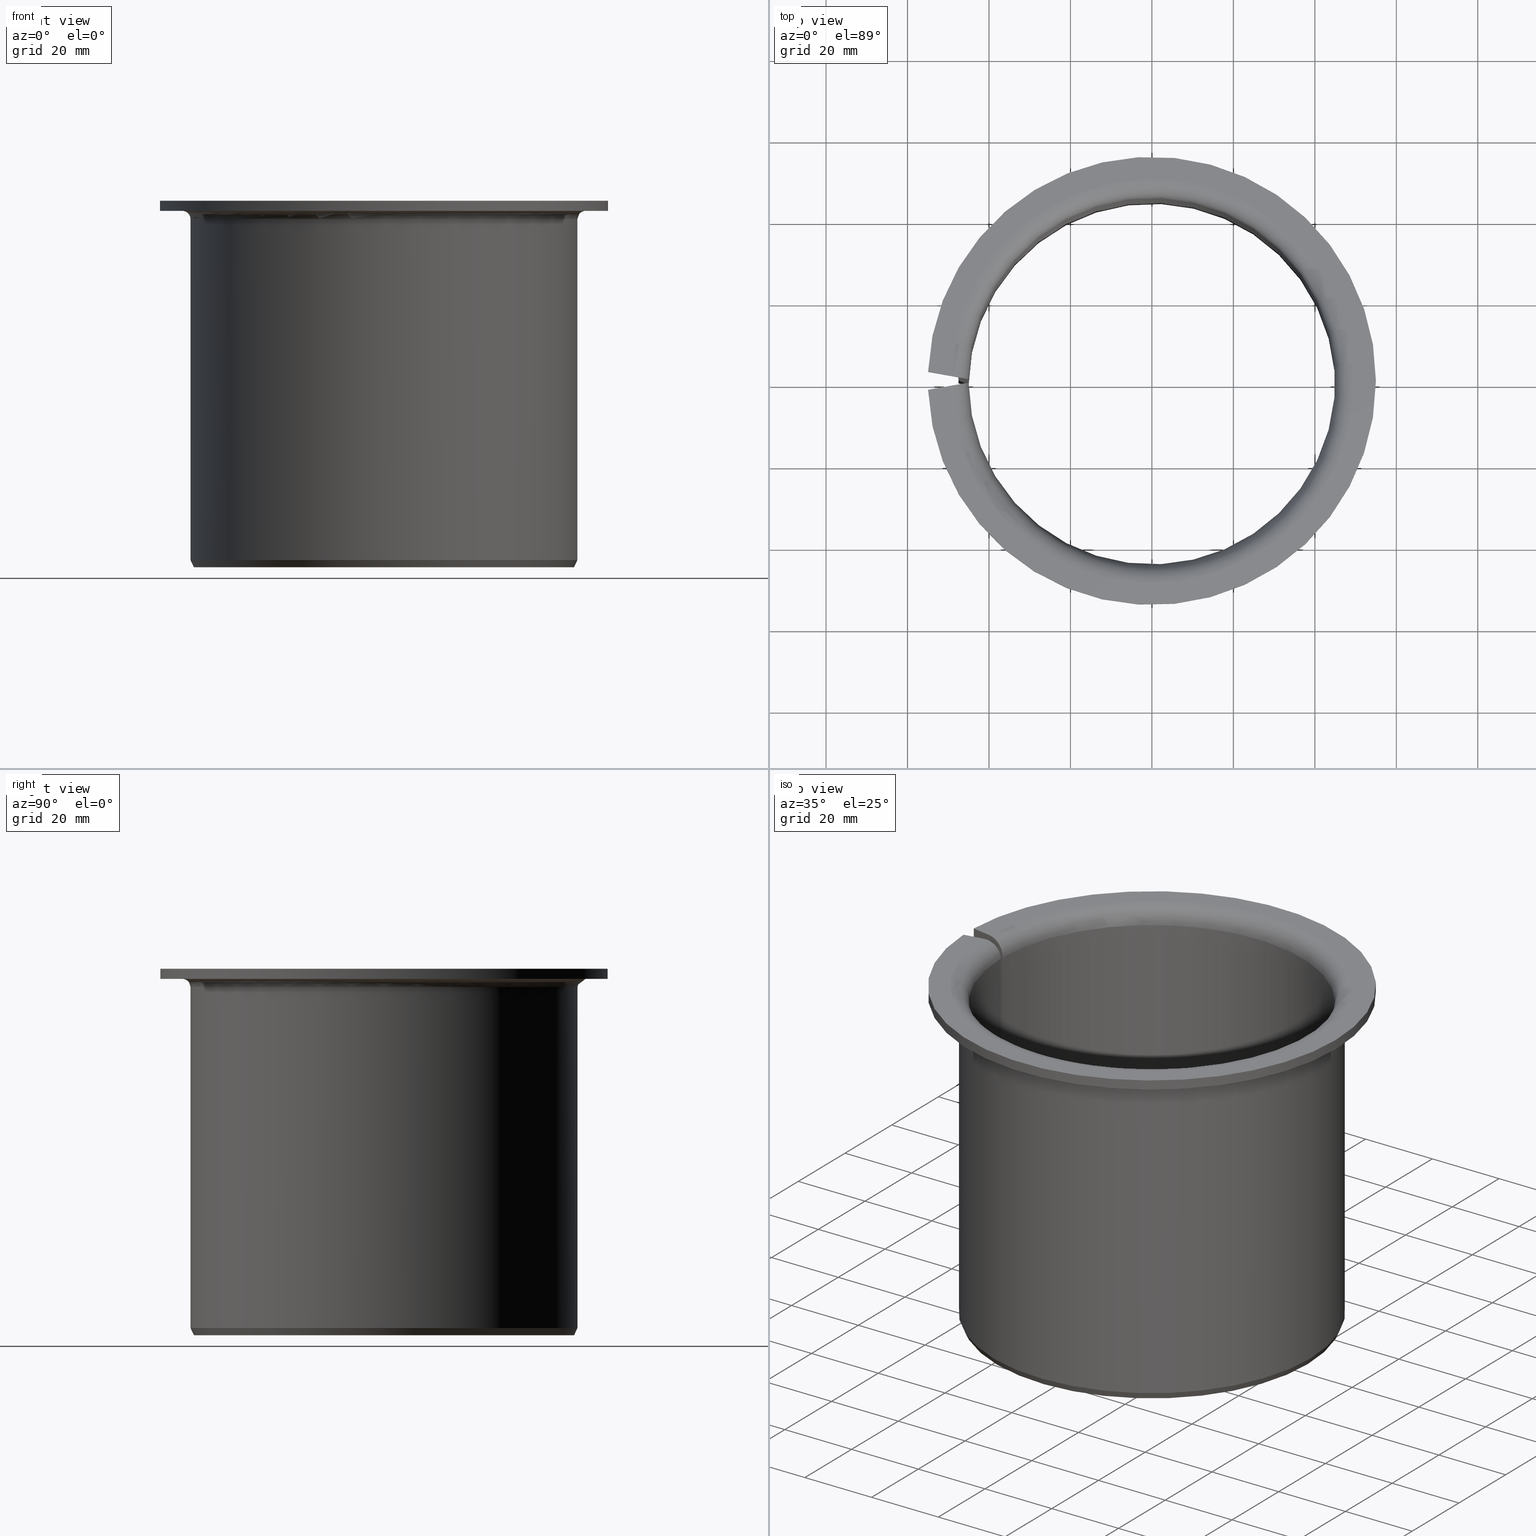
[diagram: canonical four-view strip — front | top / right | iso, engineering-drawing reading convention]
A machine part, canonical four-view strip (front | top / right | iso — engineering-drawing reading convention). The complete STEP part file that produces these views, byte-faithful:
ISO-10303-21;
HEADER;
FILE_DESCRIPTION(('STEP AP203'),'1');
FILE_NAME('475-FBB090-9090.stp','2016-09-21T15:05:08',(' '),(' '),'Spatial InterOp 3D',' ',' ');
FILE_SCHEMA(('CONFIG_CONTROL_DESIGN'));
ENDSEC;
DATA;
#1=DESIGN_CONTEXT('',#51,'design');
#2=APPLICATION_PROTOCOL_DEFINITION('INTERNATIONAL STANDARD','config_control_design',1994,#51);
#3=PRODUCT_CATEGORY_RELATIONSHIP('NONE','NONE',#52,#53);
#4=DATE_AND_TIME(#54,#55);
#5=DATE_TIME_ROLE('creation_date');
#6=DATE_TIME_ROLE('classification_date');
#7=PERSON_AND_ORGANIZATION_ROLE('creator');
#8=PERSON_AND_ORGANIZATION_ROLE('design_supplier');
#9=PERSON_AND_ORGANIZATION_ROLE('classification_officer');
#10=PERSON_AND_ORGANIZATION_ROLE('design_owner');
#11=APPROVAL_PERSON_ORGANIZATION(#56,#57,#58);
#12=APPROVAL_DATE_TIME(#4,#57);
#13=CC_DESIGN_APPROVAL(#57,(#59,#60,#61));
#14=CC_DESIGN_DATE_AND_TIME_ASSIGNMENT(#4,#5,(#61));
#15=CC_DESIGN_DATE_AND_TIME_ASSIGNMENT(#4,#6,(#59));
#16=CC_DESIGN_PERSON_AND_ORGANIZATION_ASSIGNMENT(#56,#10,(#62));
#17=CC_DESIGN_PERSON_AND_ORGANIZATION_ASSIGNMENT(#56,#7,(#61));
#18=CC_DESIGN_PERSON_AND_ORGANIZATION_ASSIGNMENT(#56,#7,(#60));
#19=CC_DESIGN_PERSON_AND_ORGANIZATION_ASSIGNMENT(#56,#8,(#60));
#20=CC_DESIGN_SECURITY_CLASSIFICATION(#59,(#60));
#21=CC_DESIGN_PERSON_AND_ORGANIZATION_ASSIGNMENT(#56,#9,(#59));
#22=SHAPE_DEFINITION_REPRESENTATION(#63,#64);
#23=DESIGN_CONTEXT('',#65,'design');
#24=APPLICATION_PROTOCOL_DEFINITION('INTERNATIONAL STANDARD','config_control_design',1994,#65);
#25=PRODUCT_CATEGORY_RELATIONSHIP('NONE','NONE',#66,#67);
#26=DATE_AND_TIME(#68,#69);
#27=DATE_TIME_ROLE('creation_date');
#28=DATE_TIME_ROLE('classification_date');
#29=PERSON_AND_ORGANIZATION_ROLE('creator');
#30=PERSON_AND_ORGANIZATION_ROLE('design_supplier');
#31=PERSON_AND_ORGANIZATION_ROLE('classification_officer');
#32=PERSON_AND_ORGANIZATION_ROLE('design_owner');
#33=APPROVAL_PERSON_ORGANIZATION(#70,#71,#72);
#34=APPROVAL_DATE_TIME(#26,#71);
#35=CC_DESIGN_APPROVAL(#71,(#73,#74,#75));
#36=CC_DESIGN_DATE_AND_TIME_ASSIGNMENT(#26,#27,(#75));
#37=CC_DESIGN_DATE_AND_TIME_ASSIGNMENT(#26,#28,(#73));
#38=CC_DESIGN_PERSON_AND_ORGANIZATION_ASSIGNMENT(#70,#32,(#76));
#39=CC_DESIGN_PERSON_AND_ORGANIZATION_ASSIGNMENT(#70,#29,(#75));
#40=CC_DESIGN_PERSON_AND_ORGANIZATION_ASSIGNMENT(#70,#29,(#74));
#41=CC_DESIGN_PERSON_AND_ORGANIZATION_ASSIGNMENT(#70,#30,(#74));
#42=CC_DESIGN_SECURITY_CLASSIFICATION(#73,(#74));
#43=CC_DESIGN_PERSON_AND_ORGANIZATION_ASSIGNMENT(#70,#31,(#73));
#44=CONTEXT_DEPENDENT_SHAPE_REPRESENTATION(#77,#78);
#45=SHAPE_DEFINITION_REPRESENTATION(#79,#80);
#46=SHAPE_REPRESENTATION_RELATIONSHIP('NONE','NONE',#80,#81);
#47= (GEOMETRIC_REPRESENTATION_CONTEXT(3)GLOBAL_UNCERTAINTY_ASSIGNED_CONTEXT((#84))GLOBAL_UNIT_ASSIGNED_CONTEXT((#86,#87,#88))REPRESENTATION_CONTEXT('NONE','WORKSPACE'));
#51=APPLICATION_CONTEXT('CONFIGURATION CONTROLLED 3D DESIGNS OF MECHANICAL PARTS AND ASSEMBLIES');
#52=PRODUCT_CATEGORY('part','NONE');
#53=PRODUCT_RELATED_PRODUCT_CATEGORY('detail',' ',(#62));
#54=CALENDAR_DATE(2016,21,8);
#55=LOCAL_TIME(17,5,8.0,#90);
#56=PERSON_AND_ORGANIZATION(#91,#92);
#57=APPROVAL(#93,'SOLID MODEL');
#58=APPROVAL_ROLE('APPROVED');
#59=SECURITY_CLASSIFICATION('','',#94);
#60=PRODUCT_DEFINITION_FORMATION_WITH_SPECIFIED_SOURCE(' ','NONE',#62,.NOT_KNOWN.);
#61=PRODUCT_DEFINITION('NONE','NONE',#60,#1);
#62=PRODUCT('','','PART--DESC',(#95));
#63=PRODUCT_DEFINITION_SHAPE('NONE','NONE',#61);
#64=SHAPE_REPRESENTATION('',(#96,#97),#98);
#65=APPLICATION_CONTEXT('CONFIGURATION CONTROLLED 3D DESIGNS OF MECHANICAL PARTS AND ASSEMBLIES');
#66=PRODUCT_CATEGORY('part','NONE');
#67=PRODUCT_RELATED_PRODUCT_CATEGORY('detail',' ',(#76));
#68=CALENDAR_DATE(2016,21,8);
#69=LOCAL_TIME(17,5,8.0,#99);
#70=PERSON_AND_ORGANIZATION(#100,#101);
#71=APPROVAL(#102,'SOLID MODEL');
#72=APPROVAL_ROLE('APPROVED');
#73=SECURITY_CLASSIFICATION('','',#103);
#74=PRODUCT_DEFINITION_FORMATION_WITH_SPECIFIED_SOURCE(' ','NONE',#76,.NOT_KNOWN.);
#75=PRODUCT_DEFINITION('475-FBB090-9090','475-FBB090-9090',#74,#23);
#76=PRODUCT('475-FBB090-9090','475-FBB090-9090','PART-475-FBB090-9090-DESC',(#104));
#77=(REPRESENTATION_RELATIONSHIP('','',#80,#64)REPRESENTATION_RELATIONSHIP_WITH_TRANSFORMATION(#107)SHAPE_REPRESENTATION_RELATIONSHIP());
#78=PRODUCT_DEFINITION_SHAPE('NAUO-PROD-DEF','NAUO-PROD-DEF',#109);
#79=PRODUCT_DEFINITION_SHAPE('NONE','NONE',#75);
#80=SHAPE_REPRESENTATION('475-FBB090-9090',(#96),#98);
#81=ADVANCED_BREP_SHAPE_REPRESENTATION('',(#110),#47);
#84=UNCERTAINTY_MEASURE_WITH_UNIT(LENGTH_MEASURE(1.0E-006),#86,'','');
#86= (CONVERSION_BASED_UNIT('METRE',#113)LENGTH_UNIT()NAMED_UNIT(#116));
#87= (NAMED_UNIT(#118)PLANE_ANGLE_UNIT()SI_UNIT($,.RADIAN.));
#88= (NAMED_UNIT(#118)SOLID_ANGLE_UNIT()SI_UNIT($,.STERADIAN.));
#90=COORDINATED_UNIVERSAL_TIME_OFFSET(1,0,.AHEAD.);
#91=PERSON('','UNSPECIFIED',$,$,$,$);
#92=ORGANIZATION('UNSPECIFIED','UNSPECIFIED','UNSPECIFIED');
#93=APPROVAL_STATUS('approved');
#94=SECURITY_CLASSIFICATION_LEVEL('unclassified');
#95=MECHANICAL_CONTEXT('',#51,'mechanical');
#96=AXIS2_PLACEMENT_3D('',#124,#125,#126);
#97=AXIS2_PLACEMENT_3D('',#127,#128,#129);
#98= (GEOMETRIC_REPRESENTATION_CONTEXT(3)GLOBAL_UNCERTAINTY_ASSIGNED_CONTEXT((#132))GLOBAL_UNIT_ASSIGNED_CONTEXT((#134,#135,#136))REPRESENTATION_CONTEXT('NONE','WORKSPACE'));
#99=COORDINATED_UNIVERSAL_TIME_OFFSET(1,0,.AHEAD.);
#100=PERSON('','UNSPECIFIED',$,$,$,$);
#101=ORGANIZATION('UNSPECIFIED','UNSPECIFIED','UNSPECIFIED');
#102=APPROVAL_STATUS('approved');
#103=SECURITY_CLASSIFICATION_LEVEL('unclassified');
#104=MECHANICAL_CONTEXT('',#65,'mechanical');
#107=ITEM_DEFINED_TRANSFORMATION('','',#96,#97);
#109=NEXT_ASSEMBLY_USAGE_OCCURRENCE('475-FBB090-9090','475-FBB090-9090','475-FBB090-9090',#61,#75,$);
#110=MANIFOLD_SOLID_BREP('',#138);
#113=LENGTH_MEASURE_WITH_UNIT(LENGTH_MEASURE(1.0),#139);
#116=DIMENSIONAL_EXPONENTS(1.0,0.0,0.0,0.0,0.0,0.0,0.0);
#118=DIMENSIONAL_EXPONENTS(0.0,0.0,0.0,0.0,0.0,0.0,0.0);
#124=CARTESIAN_POINT('',(0.0,0.0,0.0));
#125=DIRECTION('',(0.0,0.0,1.0));
#126=DIRECTION('',(1.0,0.0,0.0));
#127=CARTESIAN_POINT('',(0.0,0.0,0.0));
#128=DIRECTION('',(0.0,0.0,1.0));
#129=DIRECTION('',(-1.0,-1.20980294963545E-015,0.0));
#132=UNCERTAINTY_MEASURE_WITH_UNIT(LENGTH_MEASURE(1.0E-006),#134,'','');
#134= (CONVERSION_BASED_UNIT('METRE',#142)LENGTH_UNIT()NAMED_UNIT(#145));
#135= (NAMED_UNIT(#147)PLANE_ANGLE_UNIT()SI_UNIT($,.RADIAN.));
#136= (NAMED_UNIT(#147)SOLID_ANGLE_UNIT()SI_UNIT($,.STERADIAN.));
#138=CLOSED_SHELL('',(#153,#154,#155,#156,#157,#158,#159,#160,#161,#162,#163,#164));
#139= (NAMED_UNIT(#116)LENGTH_UNIT()SI_UNIT($,.METRE.));
#142=LENGTH_MEASURE_WITH_UNIT(LENGTH_MEASURE(1.0),#166);
#145=DIMENSIONAL_EXPONENTS(1.0,0.0,0.0,0.0,0.0,0.0,0.0);
#147=DIMENSIONAL_EXPONENTS(0.0,0.0,0.0,0.0,0.0,0.0,0.0);
#153=ADVANCED_FACE('',(#167),#168,.F.);
#154=ADVANCED_FACE('',(#169),#170,.F.);
#155=ADVANCED_FACE('',(#171),#172,.T.);
#156=ADVANCED_FACE('',(#173),#174,.F.);
#157=ADVANCED_FACE('',(#175),#176,.T.);
#158=ADVANCED_FACE('',(#177),#178,.T.);
#159=ADVANCED_FACE('',(#179),#180,.T.);
#160=ADVANCED_FACE('',(#181),#182,.T.);
#161=ADVANCED_FACE('',(#183),#184,.F.);
#162=ADVANCED_FACE('',(#185),#186,.T.);
#163=ADVANCED_FACE('',(#187),#188,.T.);
#164=ADVANCED_FACE('',(#189),#190,.T.);
#166= (NAMED_UNIT(#145)LENGTH_UNIT()SI_UNIT($,.METRE.));
#167=FACE_OUTER_BOUND('',#192,.T.);
#168=PLANE('',#193);
#169=FACE_OUTER_BOUND('',#194,.T.);
#170=CONICAL_SURFACE('',#195,0.045,0.785398163397448);
#171=FACE_OUTER_BOUND('',#196,.T.);
#172=TOROIDAL_SURFACE('',#197,0.0495,0.0045);
#173=FACE_OUTER_BOUND('',#198,.T.);
#174=TOROIDAL_SURFACE('',#199,0.0495,0.002);
#175=FACE_OUTER_BOUND('',#200,.T.);
#176=PLANE('',#201);
#177=FACE_OUTER_BOUND('',#202,.T.);
#178=CYLINDRICAL_SURFACE('',#203,0.055);
#179=FACE_OUTER_BOUND('',#204,.T.);
#180=PLANE('',#205);
#181=FACE_OUTER_BOUND('',#206,.T.);
#182=CYLINDRICAL_SURFACE('',#207,0.0475);
#183=FACE_OUTER_BOUND('',#208,.T.);
#184=CYLINDRICAL_SURFACE('',#209,0.045);
#185=FACE_OUTER_BOUND('',#210,.T.);
#186=PLANE('',#211);
#187=FACE_OUTER_BOUND('',#212,.T.);
#188=CONICAL_SURFACE('',#213,0.046660646215321,0.436332312998585);
#189=FACE_OUTER_BOUND('',#214,.T.);
#190=PLANE('',#215);
#192=EDGE_LOOP('',(#216,#217,#218,#219,#220,#221,#222,#223,#224,#225));
#193=AXIS2_PLACEMENT_3D('',#226,#227,#228);
#194=EDGE_LOOP('',(#229,#230,#231,#232));
#195=AXIS2_PLACEMENT_3D('',#233,#234,#235);
#196=EDGE_LOOP('',(#236,#237,#238,#239));
#197=AXIS2_PLACEMENT_3D('',#240,#241,#242);
#198=EDGE_LOOP('',(#243,#244,#245,#246));
#199=AXIS2_PLACEMENT_3D('',#247,#248,#249);
#200=EDGE_LOOP('',(#250,#251,#252,#253));
#201=AXIS2_PLACEMENT_3D('',#254,#255,#256);
#202=EDGE_LOOP('',(#257,#258,#259,#260));
#203=AXIS2_PLACEMENT_3D('',#261,#262,#263);
#204=EDGE_LOOP('',(#264,#265,#266,#267));
#205=AXIS2_PLACEMENT_3D('',#268,#269,#270);
#206=EDGE_LOOP('',(#271,#272,#273,#274));
#207=AXIS2_PLACEMENT_3D('',#275,#276,#277);
#208=EDGE_LOOP('',(#278,#279,#280,#281));
#209=AXIS2_PLACEMENT_3D('',#282,#283,#284);
#210=EDGE_LOOP('',(#285,#286,#287,#288));
#211=AXIS2_PLACEMENT_3D('',#289,#290,#291);
#212=EDGE_LOOP('',(#292,#293,#294,#295));
#213=AXIS2_PLACEMENT_3D('',#296,#297,#298);
#214=EDGE_LOOP('',(#299,#300,#301,#302,#303,#304,#305,#306,#307,#308));
#215=AXIS2_PLACEMENT_3D('',#309,#310,#311);
#216=ORIENTED_EDGE('',*,*,#312,.T.);
#217=ORIENTED_EDGE('',*,*,#313,.F.);
#218=ORIENTED_EDGE('',*,*,#314,.T.);
#219=ORIENTED_EDGE('',*,*,#315,.T.);
#220=ORIENTED_EDGE('',*,*,#316,.T.);
#221=ORIENTED_EDGE('',*,*,#317,.T.);
#222=ORIENTED_EDGE('',*,*,#318,.T.);
#223=ORIENTED_EDGE('',*,*,#319,.F.);
#224=ORIENTED_EDGE('',*,*,#320,.T.);
#225=ORIENTED_EDGE('',*,*,#321,.T.);
#226=CARTESIAN_POINT('',(0.0317904414431837,0.00188838412504393,-6.28824004449366E-019));
#227=DIRECTION('',(-0.173648177666931,-0.984807753012208,5.78241158658935E-017));
#228=DIRECTION('',(-1.00410523453138E-017,-5.69456376158081E-017,-1.0));
#229=ORIENTED_EDGE('',*,*,#322,.T.);
#230=ORIENTED_EDGE('',*,*,#323,.T.);
#231=ORIENTED_EDGE('',*,*,#324,.F.);
#232=ORIENTED_EDGE('',*,*,#320,.F.);
#233=CARTESIAN_POINT('',(0.0,0.0,0.0006));
#234=DIRECTION('',(0.0,-6.12323399573677E-017,-1.0));
#235=DIRECTION('',(0.0,1.0,-6.12323399573677E-017));
#236=ORIENTED_EDGE('',*,*,#325,.T.);
#237=ORIENTED_EDGE('',*,*,#326,.T.);
#238=ORIENTED_EDGE('',*,*,#327,.F.);
#239=ORIENTED_EDGE('',*,*,#312,.F.);
#240=CARTESIAN_POINT('',(0.0,6.93889390390723E-018,0.0855));
#241=DIRECTION('',(0.0,-6.12323399573677E-017,-1.0));
#242=DIRECTION('',(0.0,1.0,-6.12323399573677E-017));
#243=ORIENTED_EDGE('',*,*,#328,.T.);
#244=ORIENTED_EDGE('',*,*,#329,.T.);
#245=ORIENTED_EDGE('',*,*,#330,.F.);
#246=ORIENTED_EDGE('',*,*,#316,.F.);
#247=CARTESIAN_POINT('',(0.0,6.93889390390723E-018,0.0855));
#248=DIRECTION('',(0.0,-6.12323399573677E-017,-1.0));
#249=DIRECTION('',(0.0,1.0,-6.12323399573677E-017));
#250=ORIENTED_EDGE('',*,*,#331,.T.);
#251=ORIENTED_EDGE('',*,*,#332,.T.);
#252=ORIENTED_EDGE('',*,*,#328,.F.);
#253=ORIENTED_EDGE('',*,*,#315,.F.);
#254=CARTESIAN_POINT('',(0.0495,6.93889390390723E-018,0.0875));
#255=DIRECTION('',(0.0,-6.12323399573677E-017,-1.0));
#256=DIRECTION('',(0.0,1.0,-6.12323399573677E-017));
#257=ORIENTED_EDGE('',*,*,#333,.T.);
#258=ORIENTED_EDGE('',*,*,#334,.T.);
#259=ORIENTED_EDGE('',*,*,#331,.F.);
#260=ORIENTED_EDGE('',*,*,#314,.F.);
#261=CARTESIAN_POINT('',(0.0,0.0,0.0));
#262=DIRECTION('',(0.0,-6.12323399573677E-017,-1.0));
#263=DIRECTION('',(0.0,1.0,-6.12323399573677E-017));
#264=ORIENTED_EDGE('',*,*,#327,.T.);
#265=ORIENTED_EDGE('',*,*,#335,.F.);
#266=ORIENTED_EDGE('',*,*,#333,.F.);
#267=ORIENTED_EDGE('',*,*,#313,.T.);
#268=CARTESIAN_POINT('',(0.055,6.93889390390723E-018,0.09));
#269=DIRECTION('',(0.0,6.12323399573677E-017,1.0));
#270=DIRECTION('',(0.0,-1.0,6.12323399573677E-017));
#271=ORIENTED_EDGE('',*,*,#330,.T.);
#272=ORIENTED_EDGE('',*,*,#336,.T.);
#273=ORIENTED_EDGE('',*,*,#337,.F.);
#274=ORIENTED_EDGE('',*,*,#317,.F.);
#275=CARTESIAN_POINT('',(0.0,0.0,0.0));
#276=DIRECTION('',(0.0,-6.12323399573677E-017,-1.0));
#277=DIRECTION('',(0.0,1.0,-6.12323399573677E-017));
#278=ORIENTED_EDGE('',*,*,#324,.T.);
#279=ORIENTED_EDGE('',*,*,#338,.T.);
#280=ORIENTED_EDGE('',*,*,#325,.F.);
#281=ORIENTED_EDGE('',*,*,#321,.F.);
#282=CARTESIAN_POINT('',(0.0,0.0,0.0));
#283=DIRECTION('',(0.0,-6.12323399573677E-017,-1.0));
#284=DIRECTION('',(0.0,1.0,-6.12323399573677E-017));
#285=ORIENTED_EDGE('',*,*,#339,.T.);
#286=ORIENTED_EDGE('',*,*,#340,.F.);
#287=ORIENTED_EDGE('',*,*,#322,.F.);
#288=ORIENTED_EDGE('',*,*,#319,.T.);
#289=CARTESIAN_POINT('',(0.0456,0.0,0.0));
#290=DIRECTION('',(0.0,-6.12323399573677E-017,-1.0));
#291=DIRECTION('',(0.0,1.0,-6.12323399573677E-017));
#292=ORIENTED_EDGE('',*,*,#337,.T.);
#293=ORIENTED_EDGE('',*,*,#341,.T.);
#294=ORIENTED_EDGE('',*,*,#339,.F.);
#295=ORIENTED_EDGE('',*,*,#318,.F.);
#296=CARTESIAN_POINT('',(0.0,0.0,0.0));
#297=DIRECTION('',(-0.0,6.12323399573677E-017,1.0));
#298=DIRECTION('',(0.0,-1.0,6.12323399573677E-017));
#299=ORIENTED_EDGE('',*,*,#338,.F.);
#300=ORIENTED_EDGE('',*,*,#323,.F.);
#301=ORIENTED_EDGE('',*,*,#340,.T.);
#302=ORIENTED_EDGE('',*,*,#341,.F.);
#303=ORIENTED_EDGE('',*,*,#336,.F.);
#304=ORIENTED_EDGE('',*,*,#329,.F.);
#305=ORIENTED_EDGE('',*,*,#332,.F.);
#306=ORIENTED_EDGE('',*,*,#334,.F.);
#307=ORIENTED_EDGE('',*,*,#335,.T.);
#308=ORIENTED_EDGE('',*,*,#326,.F.);
#309=CARTESIAN_POINT('',(0.0317904414431837,-0.00188838412504393,-4.01077011488349E-019));
#310=DIRECTION('',(0.173648177666931,-0.984807753012208,5.41313539199184E-017));
#311=DIRECTION('',(-1.12247161504439E-017,-5.69456376158082E-017,-1.0));
#312=EDGE_CURVE('',#342,#343,#344,.T.);
#313=EDGE_CURVE('',#345,#343,#346,.T.);
#314=EDGE_CURVE('',#345,#347,#348,.T.);
#315=EDGE_CURVE('',#347,#349,#350,.T.);
#316=EDGE_CURVE('',#349,#351,#352,.T.);
#317=EDGE_CURVE('',#351,#353,#354,.T.);
#318=EDGE_CURVE('',#353,#355,#356,.T.);
#319=EDGE_CURVE('',#357,#355,#358,.T.);
#320=EDGE_CURVE('',#357,#359,#360,.T.);
#321=EDGE_CURVE('',#359,#342,#361,.F.);
#322=EDGE_CURVE('',#357,#362,#363,.T.);
#323=EDGE_CURVE('',#362,#364,#365,.T.);
#324=EDGE_CURVE('',#359,#364,#366,.T.);
#325=EDGE_CURVE('',#342,#367,#368,.T.);
#326=EDGE_CURVE('',#367,#369,#370,.T.);
#327=EDGE_CURVE('',#343,#369,#371,.T.);
#328=EDGE_CURVE('',#349,#372,#373,.T.);
#329=EDGE_CURVE('',#372,#374,#375,.T.);
#330=EDGE_CURVE('',#351,#374,#376,.T.);
#331=EDGE_CURVE('',#347,#377,#378,.T.);
#332=EDGE_CURVE('',#377,#372,#379,.T.);
#333=EDGE_CURVE('',#345,#380,#381,.T.);
#334=EDGE_CURVE('',#380,#377,#382,.T.);
#335=EDGE_CURVE('',#380,#369,#383,.T.);
#336=EDGE_CURVE('',#374,#384,#385,.T.);
#337=EDGE_CURVE('',#353,#384,#386,.T.);
#338=EDGE_CURVE('',#364,#367,#387,.F.);
#339=EDGE_CURVE('',#355,#388,#389,.T.);
#340=EDGE_CURVE('',#362,#388,#390,.T.);
#341=EDGE_CURVE('',#384,#388,#391,.T.);
#342=VERTEX_POINT('',#392);
#343=VERTEX_POINT('',#393);
#344=B_SPLINE_CURVE_WITH_KNOTS('',3,(#394,#395,#396,#397,#398,#399,#400,#401,#402,#403,#404,#405,#406,#407,#408,#409,#410,#411),.UNSPECIFIED.,.F.,.F.,(4,2,2,2,2,2,2,2,4),(1.97145049358651E-007,0.000884334850621785,0.00176847255619421,0.00265261026176664,0.00353674796733906,0.00442088567291149,0.00530502337848392,0.00618916108405634,0.00707329878962877),.UNSPECIFIED.);
#345=VERTEX_POINT('',#412);
#346=LINE('',#413,#414);
#347=VERTEX_POINT('',#415);
#348=LINE('',#416,#417);
#349=VERTEX_POINT('',#418);
#350=LINE('',#419,#420);
#351=VERTEX_POINT('',#421);
#352=B_SPLINE_CURVE_WITH_KNOTS('',3,(#422,#423,#424,#425,#426,#427,#428,#429,#430,#431,#432,#433,#434,#435,#436,#437),.UNSPECIFIED.,.F.,.F.,(4,2,2,2,2,2,2,4),(1.55503713676908E-005,0.000408403459505791,0.000801256547643892,0.00119410963578199,0.00158696272392009,0.00197981581205819,0.00237266890019629,0.0031583750764725),.UNSPECIFIED.);
#353=VERTEX_POINT('',#438);
#354=LINE('',#439,#440);
#355=VERTEX_POINT('',#441);
#356=B_SPLINE_CURVE_WITH_KNOTS('',3,(#442,#443,#444,#445),.UNSPECIFIED.,.F.,.F.,(4,4),(2.21162533104358E-007,0.00199076471662806),.UNSPECIFIED.);
#357=VERTEX_POINT('',#446);
#358=LINE('',#447,#448);
#359=VERTEX_POINT('',#449);
#360=B_SPLINE_CURVE_WITH_KNOTS('',3,(#450,#451,#452,#453),.UNSPECIFIED.,.F.,.F.,(4,4),(2.84738308251013E-007,0.000854577328049238),.UNSPECIFIED.);
#361=LINE('',#454,#455);
#362=VERTEX_POINT('',#456);
#363=CIRCLE('',#457,0.0456);
#364=VERTEX_POINT('',#458);
#365=B_SPLINE_CURVE_WITH_KNOTS('',3,(#459,#460,#461,#462),.UNSPECIFIED.,.F.,.F.,(4,4),(2.8473830825099E-007,0.000854577328049238),.UNSPECIFIED.);
#366=CIRCLE('',#463,0.045);
#367=VERTEX_POINT('',#464);
#368=CIRCLE('',#465,0.045);
#369=VERTEX_POINT('',#466);
#370=B_SPLINE_CURVE_WITH_KNOTS('',3,(#467,#468,#469,#470,#471,#472,#473,#474,#475,#476,#477,#478,#479,#480,#481,#482,#483,#484),.UNSPECIFIED.,.F.,.F.,(4,2,2,2,2,2,2,2,4),(1.97145049358651E-007,0.000884334850621785,0.00176847255619421,0.00265261026176664,0.00353674796733906,0.00442088567291149,0.00530502337848392,0.00618916108405634,0.00707329878962877),.UNSPECIFIED.);
#371=CIRCLE('',#485,0.0495);
#372=VERTEX_POINT('',#486);
#373=CIRCLE('',#487,0.0495);
#374=VERTEX_POINT('',#488);
#375=B_SPLINE_CURVE_WITH_KNOTS('',3,(#489,#490,#491,#492,#493,#494,#495,#496,#497,#498,#499,#500,#501,#502,#503,#504),.UNSPECIFIED.,.F.,.F.,(4,2,2,2,2,2,2,4),(1.55503713676908E-005,0.000408403459505791,0.000801256547643892,0.00119410963578199,0.00158696272392009,0.00197981581205819,0.0023726689001963,0.0031583750764725),.UNSPECIFIED.);
#376=CIRCLE('',#505,0.0475);
#377=VERTEX_POINT('',#506);
#378=CIRCLE('',#507,0.055);
#379=LINE('',#508,#509);
#380=VERTEX_POINT('',#510);
#381=CIRCLE('',#511,0.055);
#382=LINE('',#512,#513);
#383=LINE('',#514,#515);
#384=VERTEX_POINT('',#516);
#385=LINE('',#517,#518);
#386=CIRCLE('',#519,0.0475);
#387=LINE('',#520,#521);
#388=VERTEX_POINT('',#522);
#389=CIRCLE('',#523,0.046660646215321);
#390=LINE('',#524,#525);
#391=B_SPLINE_CURVE_WITH_KNOTS('',3,(#526,#527,#528,#529),.UNSPECIFIED.,.F.,.F.,(4,4),(2.21162533104358E-007,0.00199076471662806),.UNSPECIFIED.);
#392=CARTESIAN_POINT('',(0.0449978445584467,-0.000440437389269974,0.0855));
#393=CARTESIAN_POINT('',(0.0494846763526473,-0.00123158689248811,0.09));
#394=CARTESIAN_POINT('',(0.0449978445584467,-0.000440437389269978,0.0855));
#395=CARTESIAN_POINT('',(0.0449978445584467,-0.000440437389269978,0.0857989792903162));
#396=CARTESIAN_POINT('',(0.0450272956006198,-0.000445630402615079,0.0860928514347786));
#397=CARTESIAN_POINT('',(0.0451425949892744,-0.000465960795694073,0.0866708157893578));
#398=CARTESIAN_POINT('',(0.0452299114197284,-0.000481357038242264,0.0869579783419838));
#399=CARTESIAN_POINT('',(0.0454570913621015,-0.000521414991558435,0.0875041336605997));
#400=CARTESIAN_POINT('',(0.0455959904999226,-0.000545906657153449,0.0877629730254597));
#401=CARTESIAN_POINT('',(0.0459238343336624,-0.000603714370500666,0.0882524973950506));
#402=CARTESIAN_POINT('',(0.0461140167307826,-0.000637248658368773,0.0884834182243236));
#403=CARTESIAN_POINT('',(0.0465286820046982,-0.000710365334122955,0.0888969610261779));
#404=CARTESIAN_POINT('',(0.0467547874509925,-0.000750233824789764,0.0890824659331073));
#405=CARTESIAN_POINT('',(0.0472454370225939,-0.000836748582336144,0.0894099310690305));
#406=CARTESIAN_POINT('',(0.0475046946433879,-0.000882462695836412,0.0895480145730178));
#407=CARTESIAN_POINT('',(0.0480422270994722,-0.000977244170850563,0.0897706933922775));
#408=CARTESIAN_POINT('',(0.0483239206426259,-0.00102691434279993,0.0898564944682428));
#409=CARTESIAN_POINT('',(0.0488994712624918,-0.00112839944584577,0.0899711875482282));
#410=CARTESIAN_POINT('',(0.0491904542982263,-0.00117970760597421,0.0900000000000001));
#411=CARTESIAN_POINT('',(0.0494846763526473,-0.00123158689248811,0.09));
#412=CARTESIAN_POINT('',(0.054956128321563,-0.0021963514982584,0.09));
#413=CARTESIAN_POINT('',(0.0621961550602441,-0.00347296355333859,0.09));
#414=VECTOR('',#530,1.0);
#415=CARTESIAN_POINT('',(0.054956128321563,-0.0021963514982584,0.0875));
#416=CARTESIAN_POINT('',(0.054956128321563,-0.0021963514982584,1.52775257809574E-019));
#417=VECTOR('',#531,1.0);
#418=CARTESIAN_POINT('',(0.0494846763526473,-0.00123158689248811,0.0875));
#419=CARTESIAN_POINT('',(0.0492889241727507,-0.00119707050163984,0.0875));
#420=VECTOR('',#532,1.0);
#421=CARTESIAN_POINT('',(0.0474918440745789,-0.000880196793837939,0.0855));
#422=CARTESIAN_POINT('',(0.0494846763526473,-0.00123158689248811,0.0875));
#423=CARTESIAN_POINT('',(0.0493540320077442,-0.00120855076960471,0.0875));
#424=CARTESIAN_POINT('',(0.0492254276258401,-0.00118587434723769,0.0874872190440594));
#425=CARTESIAN_POINT('',(0.0489721521045332,-0.00114121503927828,0.0874370142346661));
#426=CARTESIAN_POINT('',(0.0488461692496826,-0.00111900086286145,0.0873989770889222));
#427=CARTESIAN_POINT('',(0.0486058113968066,-0.00107661928837425,0.0872996161661345));
#428=CARTESIAN_POINT('',(0.0484916308869485,-0.00105648618381521,0.0872387464211676));
#429=CARTESIAN_POINT('',(0.0482752249511578,-0.00101832797854985,0.0870947062419766));
#430=CARTESIAN_POINT('',(0.0481725248002769,-0.00100021917102671,0.0870107162398646));
#431=CARTESIAN_POINT('',(0.047988151445599,-0.00096770917407326,0.0868269189004147));
#432=CARTESIAN_POINT('',(0.0479052831282254,-0.000953097253874393,0.0867265153968632));
#433=CARTESIAN_POINT('',(0.0477587128237963,-0.000927252954632891,0.0865082153486001));
#434=CARTESIAN_POINT('',(0.0476961167217591,-0.000916215572956558,0.0863914900886788));
#435=CARTESIAN_POINT('',(0.047545457392996,-0.000889650268400192,0.0860296725663948));
#436=CARTESIAN_POINT('',(0.0474918440745775,-0.000880196793837692,0.0857657441273415));
#437=CARTESIAN_POINT('',(0.0474918440745775,-0.000880196793837688,0.0855000000000002));
#438=CARTESIAN_POINT('',(0.0474918440745789,-0.000880196793837944,0.0018));
#439=CARTESIAN_POINT('',(0.0474918440745789,-0.000880196793837944,7.21840255120119E-020));
#440=VECTOR('',#533,1.0);
#441=CARTESIAN_POINT('',(0.0466548944183203,-0.000732619987944872,6.43083039248804E-019));
#442=CARTESIAN_POINT('',(0.0474918440745789,-0.000880196793837948,0.00179999999999999));
#443=CARTESIAN_POINT('',(0.0472129116263229,-0.000831013477415351,0.00119997566188162));
#444=CARTESIAN_POINT('',(0.0469339293377242,-0.00078182137279559,0.000599975210421917));
#445=CARTESIAN_POINT('',(0.0466548944183203,-0.000732619987944876,-5.01446541423603E-019));
#446=CARTESIAN_POINT('',(0.0455967306220434,-0.000546037160652355,6.43083039248804E-019));
#447=CARTESIAN_POINT('',(0.0425,1.73472347597681E-018,6.43083039248804E-019));
#448=VECTOR('',#534,1.0);
#449=CARTESIAN_POINT('',(0.0449978445584467,-0.000440437389269978,0.0006));
#450=CARTESIAN_POINT('',(0.0455967306220434,-0.00054603716065236,-2.51186459207152E-017));
#451=CARTESIAN_POINT('',(0.0453971195975806,-0.000510840351392714,0.000200018177136199));
#452=CARTESIAN_POINT('',(0.045197491146778,-0.000475640469399187,0.00040001842442084));
#453=CARTESIAN_POINT('',(0.0449978445584467,-0.000440437389269982,0.000600000000000009));
#454=CARTESIAN_POINT('',(0.0449978445584467,-0.000440437389269979,4.52565281520567E-020));
#455=VECTOR('',#535,1.0);
#456=CARTESIAN_POINT('',(0.0455967306220434,0.000546037160652359,5.77228682746705E-019));
#457=AXIS2_PLACEMENT_3D('',#536,#537,#538);
#458=CARTESIAN_POINT('',(0.0449978445584467,0.000440437389269984,0.0006));
#459=CARTESIAN_POINT('',(0.0455967306220434,0.000546037160652365,-2.50635472004508E-017));
#460=CARTESIAN_POINT('',(0.0453971195975806,0.000510840351392719,0.000200018177136199));
#461=CARTESIAN_POINT('',(0.045197491146778,0.000475640469399192,0.00040001842442084));
#462=CARTESIAN_POINT('',(0.0449978445584467,0.000440437389269987,0.000600000000000009));
#463=AXIS2_PLACEMENT_3D('',#539,#540,#541);
#464=CARTESIAN_POINT('',(0.0449978445584467,0.000440437389269989,0.0855));
#465=AXIS2_PLACEMENT_3D('',#542,#543,#544);
#466=CARTESIAN_POINT('',(0.0494846763526473,0.00123158689248812,0.09));
#467=CARTESIAN_POINT('',(0.0449978445584467,0.000440437389269993,0.0855));
#468=CARTESIAN_POINT('',(0.0449978445584467,0.000440437389269993,0.0857989792903162));
#469=CARTESIAN_POINT('',(0.0450272956006198,0.000445630402615094,0.0860928514347786));
#470=CARTESIAN_POINT('',(0.0451425949892744,0.000465960795694089,0.0866708157893578));
#471=CARTESIAN_POINT('',(0.0452299114197284,0.000481357038242279,0.0869579783419838));
#472=CARTESIAN_POINT('',(0.0454570913621015,0.00052141499155845,0.0875041336605997));
#473=CARTESIAN_POINT('',(0.0455959904999226,0.000545906657153464,0.0877629730254597));
#474=CARTESIAN_POINT('',(0.0459238343336624,0.00060371437050068,0.0882524973950506));
#475=CARTESIAN_POINT('',(0.0461140167307826,0.000637248658368788,0.0884834182243236));
#476=CARTESIAN_POINT('',(0.0465286820046982,0.00071036533412297,0.0888969610261779));
#477=CARTESIAN_POINT('',(0.0467547874509925,0.00075023382478978,0.0890824659331073));
#478=CARTESIAN_POINT('',(0.0472454370225939,0.00083674858233616,0.0894099310690305));
#479=CARTESIAN_POINT('',(0.0475046946433879,0.000882462695836428,0.0895480145730178));
#480=CARTESIAN_POINT('',(0.0480422270994722,0.000977244170850578,0.0897706933922775));
#481=CARTESIAN_POINT('',(0.0483239206426259,0.00102691434279994,0.0898564944682428));
#482=CARTESIAN_POINT('',(0.0488994712624918,0.00112839944584579,0.0899711875482282));
#483=CARTESIAN_POINT('',(0.0491904542982263,0.00117970760597422,0.0900000000000001));
#484=CARTESIAN_POINT('',(0.0494846763526473,0.00123158689248813,0.09));
#485=AXIS2_PLACEMENT_3D('',#545,#546,#547);
#486=CARTESIAN_POINT('',(0.0494846763526473,0.00123158689248812,0.0875));
#487=AXIS2_PLACEMENT_3D('',#548,#549,#550);
#488=CARTESIAN_POINT('',(0.0474918440745789,0.000880196793837954,0.0855));
#489=CARTESIAN_POINT('',(0.0494846763526473,0.00123158689248813,0.0875));
#490=CARTESIAN_POINT('',(0.0493540320077442,0.00120855076960473,0.0875));
#491=CARTESIAN_POINT('',(0.0492254276258401,0.0011858743472377,0.0874872190440594));
#492=CARTESIAN_POINT('',(0.0489721521045332,0.0011412150392783,0.0874370142346661));
#493=CARTESIAN_POINT('',(0.0488461692496826,0.00111900086286146,0.0873989770889222));
#494=CARTESIAN_POINT('',(0.0486058113968066,0.00107661928837426,0.0872996161661345));
#495=CARTESIAN_POINT('',(0.0484916308869485,0.00105648618381522,0.0872387464211676));
#496=CARTESIAN_POINT('',(0.0482752249511578,0.00101832797854986,0.0870947062419766));
#497=CARTESIAN_POINT('',(0.0481725248002769,0.00100021917102673,0.0870107162398646));
#498=CARTESIAN_POINT('',(0.047988151445599,0.000967709174073275,0.0868269189004147));
#499=CARTESIAN_POINT('',(0.0479052831282254,0.000953097253874408,0.0867265153968632));
#500=CARTESIAN_POINT('',(0.0477587128237963,0.000927252954632906,0.0865082153486001));
#501=CARTESIAN_POINT('',(0.0476961167217591,0.000916215572956573,0.0863914900886788));
#502=CARTESIAN_POINT('',(0.047545457392996,0.000889650268400208,0.0860296725663948));
#503=CARTESIAN_POINT('',(0.0474918440745775,0.000880196793837706,0.0857657441273415));
#504=CARTESIAN_POINT('',(0.0474918440745775,0.000880196793837703,0.0855000000000002));
#505=AXIS2_PLACEMENT_3D('',#551,#552,#553);
#506=CARTESIAN_POINT('',(0.054956128321563,0.00219635149825841,0.0875));
#507=AXIS2_PLACEMENT_3D('',#554,#555,#556);
#508=CARTESIAN_POINT('',(0.0492889241727507,0.00119707050163985,0.0875));
#509=VECTOR('',#557,1.0);
#510=CARTESIAN_POINT('',(0.054956128321563,0.00219635149825841,0.09));
#511=AXIS2_PLACEMENT_3D('',#558,#559,#560);
#512=CARTESIAN_POINT('',(0.054956128321563,0.00219635149825841,-1.8002801656482E-019));
#513=VECTOR('',#561,1.0);
#514=CARTESIAN_POINT('',(0.0621961550602441,0.00347296355333861,0.09));
#515=VECTOR('',#562,1.0);
#516=CARTESIAN_POINT('',(0.0474918440745789,0.000880196793837948,0.0018));
#517=CARTESIAN_POINT('',(0.0474918440745789,0.000880196793837948,-9.94367842672578E-020));
#518=VECTOR('',#563,1.0);
#519=AXIS2_PLACEMENT_3D('',#564,#565,#566);
#520=CARTESIAN_POINT('',(0.0449978445584467,0.000440437389269984,-7.25092869073027E-020));
#521=VECTOR('',#567,1.0);
#522=CARTESIAN_POINT('',(0.0466548944183203,0.000732619987944874,-4.48600361614032E-020));
#523=AXIS2_PLACEMENT_3D('',#568,#569,#570);
#524=CARTESIAN_POINT('',(0.0425,1.73472347597681E-018,6.43083039248804E-019));
#525=VECTOR('',#571,1.0);
#526=CARTESIAN_POINT('',(0.0474918440745789,0.000880196793837953,0.00179999999999999));
#527=CARTESIAN_POINT('',(0.0472129116263229,0.000831013477415356,0.00119997566188162));
#528=CARTESIAN_POINT('',(0.0469339293377242,0.000781821372795596,0.000599975210421917));
#529=CARTESIAN_POINT('',(0.0466548944183203,0.000732619987944881,-7.75566804929129E-019));
#530=DIRECTION('',(-0.984807753012208,0.173648177666931,0.0));
#531=DIRECTION('',(0.0,-6.12323399573677E-017,-1.0));
#532=DIRECTION('',(-0.984807753012208,0.173648177666931,-1.06328842478789E-017));
#533=DIRECTION('',(0.0,-6.12323399573677E-017,-1.0));
#534=DIRECTION('',(0.984807753012208,-0.173648177666931,0.0));
#535=DIRECTION('',(0.0,-6.12323399573677E-017,-1.0));
#536=CARTESIAN_POINT('',(0.0,0.0,0.0));
#537=DIRECTION('',(0.0,-6.12323399573677E-017,-1.0));
#538=DIRECTION('',(0.0,1.0,-6.12323399573677E-017));
#539=CARTESIAN_POINT('',(0.0,0.0,0.0006));
#540=DIRECTION('',(0.0,-6.12323399573677E-017,-1.0));
#541=DIRECTION('',(0.0,1.0,-6.12323399573677E-017));
#542=CARTESIAN_POINT('',(0.0,6.93889390390723E-018,0.0855));
#543=DIRECTION('',(0.0,-6.12323399573677E-017,-1.0));
#544=DIRECTION('',(0.0,1.0,-6.12323399573677E-017));
#545=CARTESIAN_POINT('',(0.0,6.93889390390723E-018,0.09));
#546=DIRECTION('',(0.0,-6.12323399573677E-017,-1.0));
#547=DIRECTION('',(0.0,1.0,-6.12323399573677E-017));
#548=CARTESIAN_POINT('',(0.0,6.93889390390723E-018,0.0875));
#549=DIRECTION('',(0.0,-6.12323399573677E-017,-1.0));
#550=DIRECTION('',(0.0,1.0,-6.12323399573677E-017));
#551=CARTESIAN_POINT('',(0.0,6.93889390390723E-018,0.0855));
#552=DIRECTION('',(0.0,-6.12323399573677E-017,-1.0));
#553=DIRECTION('',(0.0,1.0,-6.12323399573677E-017));
#554=CARTESIAN_POINT('',(0.0,6.93889390390723E-018,0.0875));
#555=DIRECTION('',(0.0,-6.12323399573677E-017,-1.0));
#556=DIRECTION('',(0.0,1.0,-6.12323399573677E-017));
#557=DIRECTION('',(-0.984807753012208,-0.173648177666931,1.06328842478789E-017));
#558=CARTESIAN_POINT('',(0.0,6.93889390390723E-018,0.09));
#559=DIRECTION('',(0.0,-6.12323399573677E-017,-1.0));
#560=DIRECTION('',(0.0,1.0,-6.12323399573677E-017));
#561=DIRECTION('',(0.0,-6.12323399573677E-017,-1.0));
#562=DIRECTION('',(-0.984807753012208,-0.173648177666931,2.0942693688385E-017));
#563=DIRECTION('',(0.0,-6.12323399573677E-017,-1.0));
#564=CARTESIAN_POINT('',(0.0,0.0,0.0018));
#565=DIRECTION('',(0.0,-6.12323399573677E-017,-1.0));
#566=DIRECTION('',(0.0,1.0,-6.12323399573677E-017));
#567=DIRECTION('',(0.0,-6.12323399573677E-017,-1.0));
#568=CARTESIAN_POINT('',(0.0,0.0,0.0));
#569=DIRECTION('',(0.0,-6.12323399573677E-017,-1.0));
#570=DIRECTION('',(0.0,1.0,-6.12323399573677E-017));
#571=DIRECTION('',(0.984807753012208,0.173648177666931,-2.0942693688385E-017));
ENDSEC;
END-ISO-10303-21;
